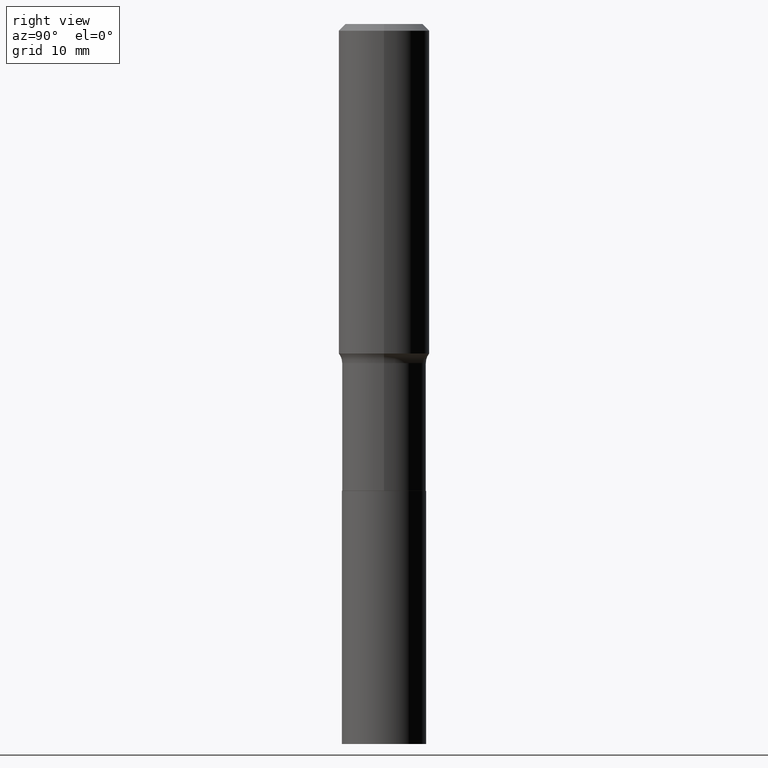
[diagram: clean part render]
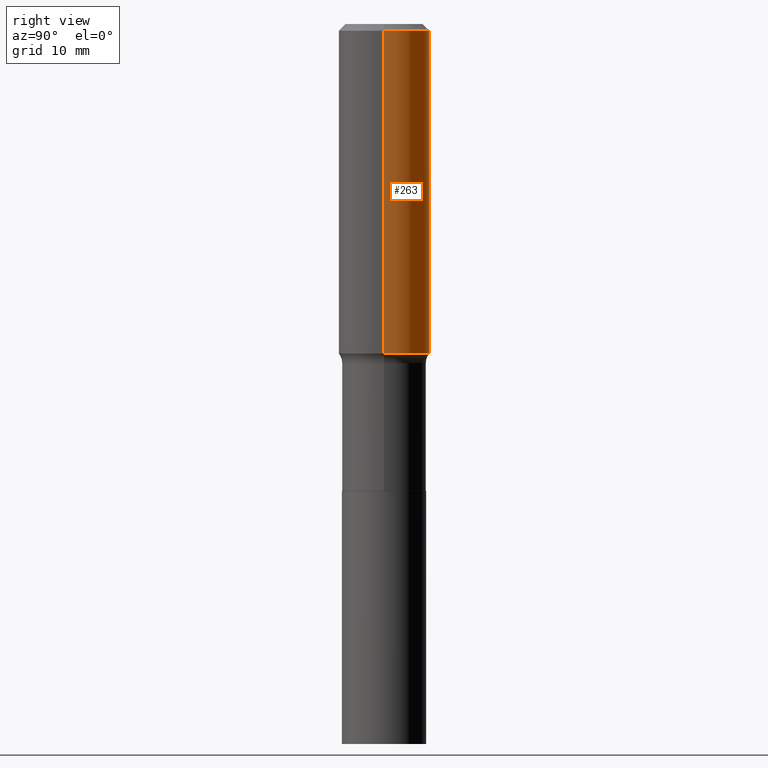
[diagram: same view with one face highlighted and labeled with its STEP entity id]
A machine part, right view. The second image highlights one B-rep face of the part: STEP entity #263.
In plain terms, the highlighted cylindrical surface (partial cylindrical patch) has radius 5.9995 mm, axis along (-0, 0, 1).
Its self-contained STEP definition (entity closure, byte-faithful):
#3 = AXIS2_PLACEMENT_3D ( 'NONE', #266, #329, #264 ) ;
#24 = VERTEX_POINT ( 'NONE', #403 ) ;
#31 = CARTESIAN_POINT ( 'NONE',  ( 0.2361999999999999933, -1.773078968304709711E-15, -0.03543000000000023908 ) ) ;
#64 = DIRECTION ( 'NONE',  ( 1.000000000000000000, -6.982962677686266711E-15, 0.000000000000000000 ) ) ;
#72 = CARTESIAN_POINT ( 'NONE',  ( -0.2362000000000001043, 1.678301941865357380E-15, -1.161852468318209317E-29 ) ) ;
#90 = ORIENTED_EDGE ( 'NONE', *, *, #204, .T. ) ;
#99 = CIRCLE ( 'NONE', #216, 0.2362000000000002153 ) ;
#106 = CARTESIAN_POINT ( 'NONE',  ( 0.2362000000000001043, -1.649375784469496920E-15, 1.151752954443000508E-29 ) ) ;
#117 = EDGE_CURVE ( 'NONE', #24, #368, #99, .T. ) ;
#119 = EDGE_CURVE ( 'NONE', #384, #339, #163, .T. ) ;
#146 = DIRECTION ( 'NONE',  ( -2.445468806185136877E-29, 3.491481338843145188E-15, 1.000000000000000000 ) ) ;
#163 = CIRCLE ( 'NONE', #331, 0.2361999999999999933 ) ;
#193 = VECTOR ( 'NONE', #412, 39.37007874015748143 ) ;
#204 = EDGE_CURVE ( 'NONE', #368, #339, #293, .T. ) ;
#216 = AXIS2_PLACEMENT_3D ( 'NONE', #465, #252, #64 ) ;
#217 = DIRECTION ( 'NONE',  ( -2.445468806185136597E-29, 3.491481338843145583E-15, 1.000000000000000000 ) ) ;
#221 = CARTESIAN_POINT ( 'NONE',  ( 8.664295980313996991E-31, -1.237031838352134818E-16, -0.03543000000000023908 ) ) ;
#230 = CYLINDRICAL_SURFACE ( 'NONE', #3, 0.2362000000000001043 ) ;
#252 = DIRECTION ( 'NONE',  ( -2.445468806185136597E-29, 3.491481338843145583E-15, 1.000000000000000000 ) ) ;
#258 = DIRECTION ( 'NONE',  ( 1.000000000000000000, -6.982962677686266711E-15, 0.000000000000000000 ) ) ;
#263 = ADVANCED_FACE ( 'NONE', ( #409 ), #230, .T. ) ;
#264 = DIRECTION ( 'NONE',  ( 1.000000000000000000, -6.982962677686266711E-15, 4.876176775795935793E-29 ) ) ;
#266 = CARTESIAN_POINT ( 'NONE',  ( 0.000000000000000000, 0.000000000000000000, 0.000000000000000000 ) ) ;
#293 = LINE ( 'NONE', #72, #193 ) ;
#309 = EDGE_LOOP ( 'NONE', ( #346, #90, #419, #381 ) ) ;
#329 = DIRECTION ( 'NONE',  ( -2.445468806185136597E-29, 3.491481338843145583E-15, 1.000000000000000000 ) ) ;
#331 = AXIS2_PLACEMENT_3D ( 'NONE', #221, #217, #258 ) ;
#339 = VERTEX_POINT ( 'NONE', #340 ) ;
#340 = CARTESIAN_POINT ( 'NONE',  ( -0.2361999999999999933, -1.371777914626985896E-15, -0.03543000000000023908 ) ) ;
#346 = ORIENTED_EDGE ( 'NONE', *, *, #117, .T. ) ;
#368 = VERTEX_POINT ( 'NONE', #376 ) ;
#376 = CARTESIAN_POINT ( 'NONE',  ( -0.2362000000000002153, -4.298154587284115789E-15, -1.711725181704591314 ) ) ;
#379 = VECTOR ( 'NONE', #146, 39.37007874015748143 ) ;
#381 = ORIENTED_EDGE ( 'NONE', *, *, #382, .F. ) ;
#382 = EDGE_CURVE ( 'NONE', #24, #384, #464, .T. ) ;
#384 = VERTEX_POINT ( 'NONE', #31 ) ;
#403 = CARTESIAN_POINT ( 'NONE',  ( 0.2362000000000002153, -7.625832313618971075E-15, -1.711725181704591314 ) ) ;
#409 = FACE_OUTER_BOUND ( 'NONE', #309, .T. ) ;
#412 = DIRECTION ( 'NONE',  ( -2.445468806185136877E-29, 3.491481338843145188E-15, 1.000000000000000000 ) ) ;
#419 = ORIENTED_EDGE ( 'NONE', *, *, #119, .F. ) ;
#464 = LINE ( 'NONE', #106, #379 ) ;
#465 = CARTESIAN_POINT ( 'NONE',  ( 4.185970536620162731E-29, -5.976456529149473761E-15, -1.711725181704591314 ) ) ;